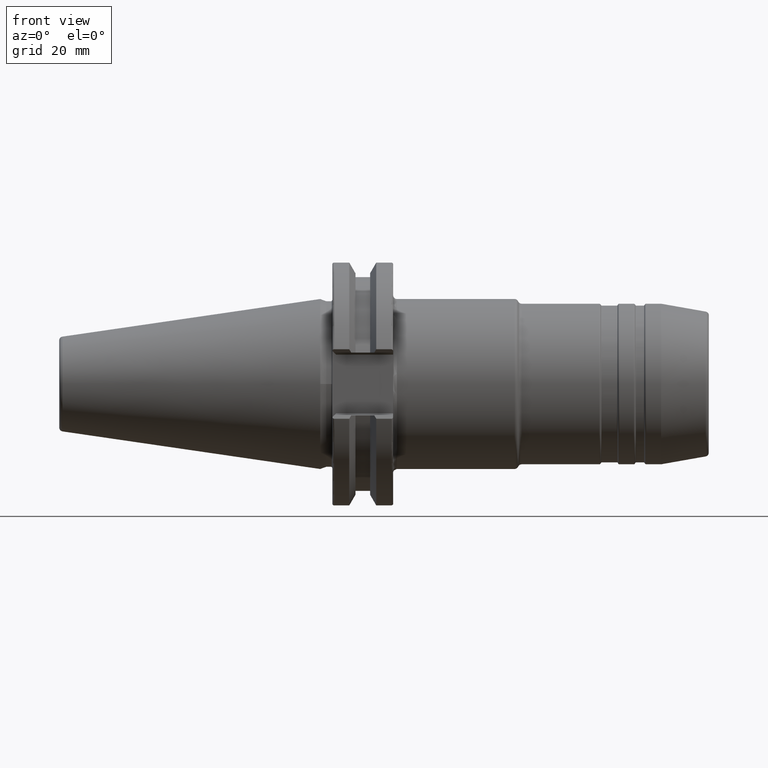
[diagram: clean part render]
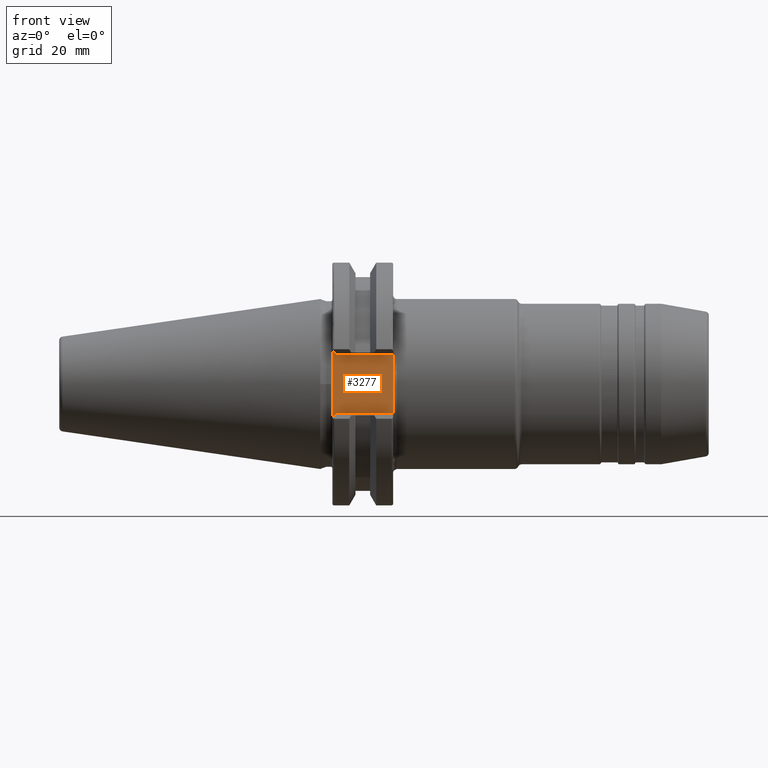
[diagram: same view with one face highlighted and labeled with its STEP entity id]
A machine part, front view. The second image highlights one B-rep face of the part: STEP entity #3277.
In plain terms, the highlighted planar face has unit normal (0, 1, 0).
Its self-contained STEP definition (entity closure, byte-faithful):
#908=DIRECTION('',(0.E0,0.E0,-1.E0));
#909=VECTOR('',#908,1.070338731430E1);
#910=CARTESIAN_POINT('',(1.9075E1,-2.26E1,5.351693657152E0));
#911=LINE('',#910,#909);
#912=DIRECTION('',(3.950318825048E-14,0.E0,-1.E0));
#913=VECTOR('',#912,2.338306342848E0);
#914=CARTESIAN_POINT('',(1.9075E1,-2.26E1,-5.351693657152E0));
#915=LINE('',#914,#913);
#916=DIRECTION('',(1.E0,0.E0,0.E0));
#917=VECTOR('',#916,1.49E1);
#918=CARTESIAN_POINT('',(4.175E0,-2.26E1,-7.69E0));
#919=LINE('',#918,#917);
#920=DIRECTION('',(0.E0,0.E0,1.E0));
#921=VECTOR('',#920,1.738E1);
#922=CARTESIAN_POINT('',(3.175E0,-2.26E1,-8.69E0));
#923=LINE('',#922,#921);
#924=DIRECTION('',(-1.E0,0.E0,0.E0));
#925=VECTOR('',#924,1.49E1);
#926=CARTESIAN_POINT('',(1.9075E1,-2.26E1,7.69E0));
#927=LINE('',#926,#925);
#928=DIRECTION('',(-4.102254164473E-14,0.E0,-1.E0));
#929=VECTOR('',#928,2.338306342848E0);
#930=CARTESIAN_POINT('',(1.9075E1,-2.26E1,7.69E0));
#931=LINE('',#930,#929);
#1152=DIRECTION('',(-7.071067811865E-1,0.E0,7.071067811865E-1));
#1153=VECTOR('',#1152,1.414213562373E0);
#1154=CARTESIAN_POINT('',(4.175E0,-2.26E1,7.69E0));
#1155=LINE('',#1154,#1153);
#1513=DIRECTION('',(7.071067811865E-1,0.E0,7.071067811865E-1));
#1514=VECTOR('',#1513,1.414213562373E0);
#1515=CARTESIAN_POINT('',(3.175E0,-2.26E1,-8.69E0));
#1516=LINE('',#1515,#1514);
#1676=CARTESIAN_POINT('',(3.175E0,-2.26E1,8.69E0));
#1678=VERTEX_POINT('',#1676);
#1685=CARTESIAN_POINT('',(3.175E0,-2.26E1,-8.69E0));
#1687=VERTEX_POINT('',#1685);
#1700=CARTESIAN_POINT('',(4.175E0,-2.26E1,-7.69E0));
#1701=VERTEX_POINT('',#1700);
#1702=CARTESIAN_POINT('',(4.175E0,-2.26E1,7.69E0));
#1703=VERTEX_POINT('',#1702);
#1736=CARTESIAN_POINT('',(1.9075E1,-2.26E1,-7.69E0));
#1737=VERTEX_POINT('',#1736);
#1738=CARTESIAN_POINT('',(1.9075E1,-2.26E1,7.69E0));
#1739=VERTEX_POINT('',#1738);
#1868=CARTESIAN_POINT('',(1.9075E1,-2.26E1,5.351693657152E0));
#1869=CARTESIAN_POINT('',(1.9075E1,-2.26E1,-5.351693657152E0));
#1870=VERTEX_POINT('',#1868);
#1871=VERTEX_POINT('',#1869);
#3258=CARTESIAN_POINT('',(0.E0,-2.26E1,0.E0));
#3259=DIRECTION('',(0.E0,1.E0,0.E0));
#3260=DIRECTION('',(1.E0,0.E0,0.E0));
#3261=AXIS2_PLACEMENT_3D('',#3258,#3259,#3260);
#3262=PLANE('',#3261);
#3263=ORIENTED_EDGE('',*,*,#3252,.T.);
#3264=ORIENTED_EDGE('',*,*,#2211,.T.);
#3266=ORIENTED_EDGE('',*,*,#3265,.F.);
#3268=ORIENTED_EDGE('',*,*,#3267,.F.);
#3269=ORIENTED_EDGE('',*,*,#2059,.T.);
#3271=ORIENTED_EDGE('',*,*,#3270,.F.);
#3273=ORIENTED_EDGE('',*,*,#3272,.F.);
#3274=ORIENTED_EDGE('',*,*,#2180,.T.);
#3275=EDGE_LOOP('',(#3263,#3264,#3266,#3268,#3269,#3271,#3273,#3274));
#3276=FACE_OUTER_BOUND('',#3275,.F.);
#3277=ADVANCED_FACE('',(#3276),#3262,.F.);
#2059=EDGE_CURVE('',#1687,#1678,#923,.T.);
#2180=EDGE_CURVE('',#1739,#1870,#931,.T.);
#2211=EDGE_CURVE('',#1871,#1737,#915,.T.);
#3252=EDGE_CURVE('',#1870,#1871,#911,.T.);
#3265=EDGE_CURVE('',#1701,#1737,#919,.T.);
#3267=EDGE_CURVE('',#1687,#1701,#1516,.T.);
#3270=EDGE_CURVE('',#1703,#1678,#1155,.T.);
#3272=EDGE_CURVE('',#1739,#1703,#927,.T.);